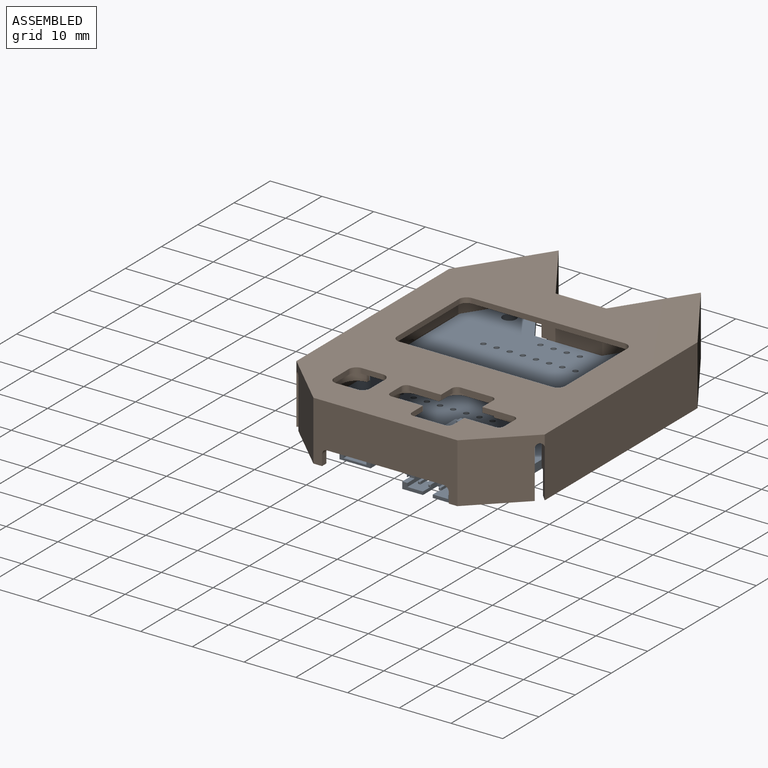
[diagram: assembled view]
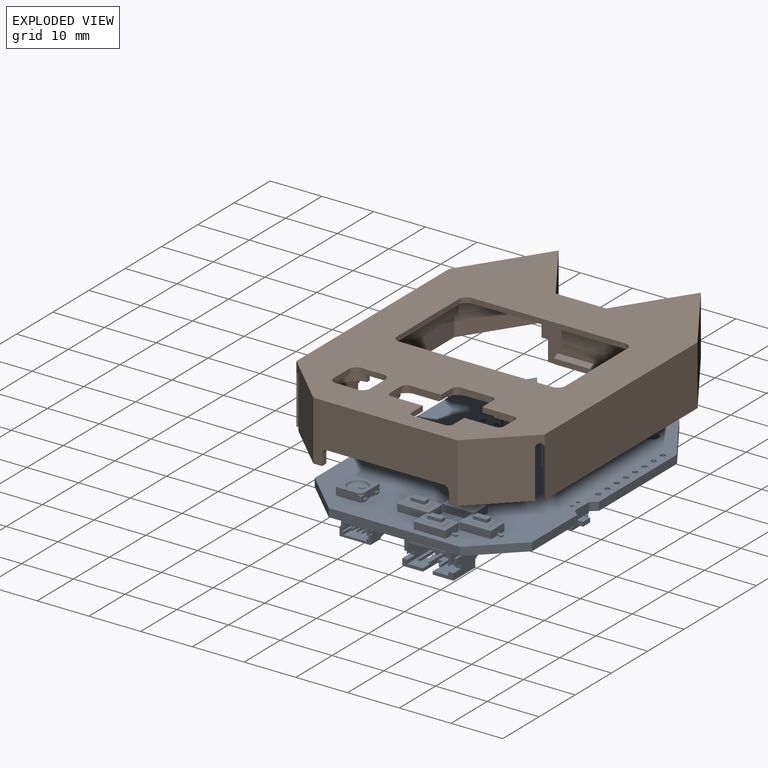
[diagram: exploded view]
GUIDED TOUR — FREECAD ASSEMBLY "v1.0_Case-Top_v3-Nugget"

This assembly has 2 components, labeled P0..P1 below (a component is one placed body or linked part; the same part can appear more than once), held together by 0 modeled joints plus 1 derived contact edge. A joint is a constraint between two components; its type names the relative motion it leaves free:
  CONTACT — a derived adjacency edge — the two components touch in the source model (clearance under 2% of the assembly's diagonal); it is measured from the geometry, not a modeled constraint.
Axis/direction vectors are unit vectors and 'through' points are millimeter coordinates, both in the assembly's world frame.

MATES
  1. CONTACT "contact_0_1": P0 <-> P1, contact direction (-1.000, 0.000, 0.000) through (21.40, 19.87, 4.75) mm (derived from contact, not a modeled constraint)

ASSEMBLY ORDER
  1. P1 — the base component [order verified]
  2. P0 [order verified]
Order-tag legend:
  [order verified] — this step's position reverses a verified removal order: the component was checked to insert without passing through the ones already placed.

Of the 2 components, 1 carries a construction recipe — the FreeCAD feature program (sketches with constraints, then the solid features that consume them) that regenerates the part from scratch, quoted from this document or from the linked companion document it references; the rest are supplied as boundary geometry only. The tour below walks the components in assembly order: each is shown spotlighted twice — in the assembled view, then in the exploded view, where a leader line traces a displaced component back to its assembled socket (components that stay in place when exploded have no leader line; saturated green if recipe-attached, orange if geometry-only; every other component desaturated gray) — followed by its recipe or geometry summary and the mates that hold it.
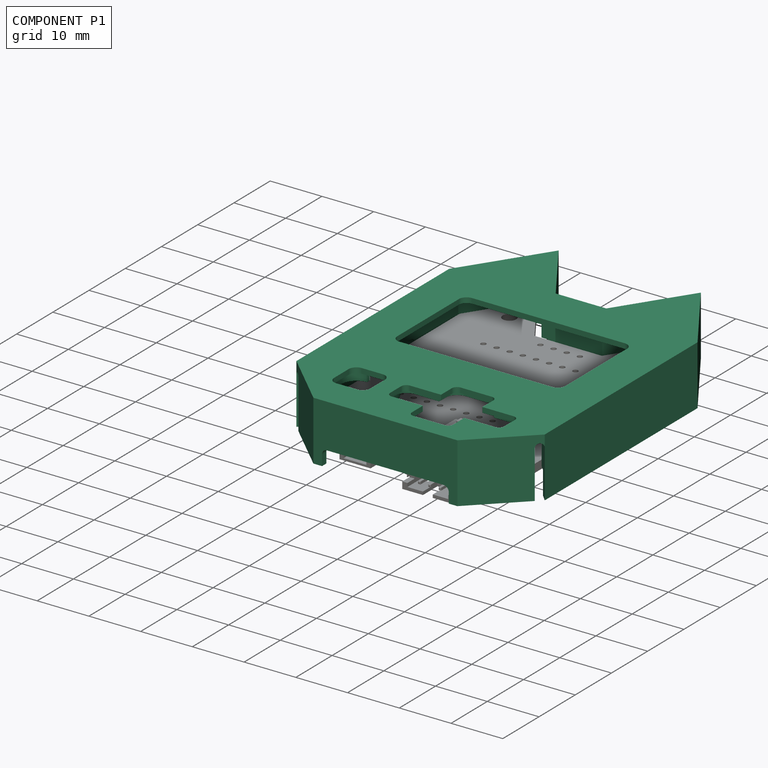
[diagram: component P1 — assembled]
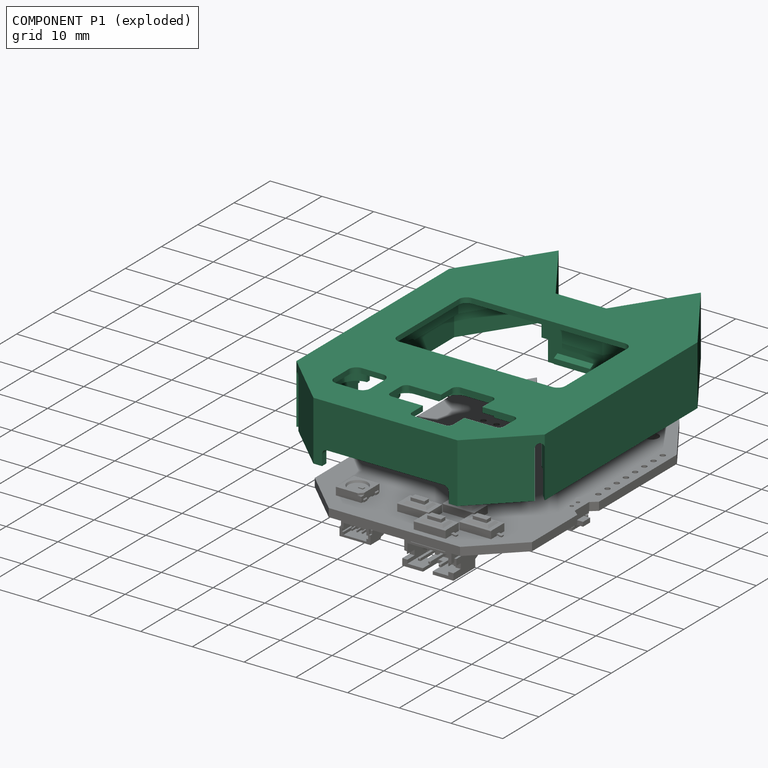
[diagram: component P1 — exploded]
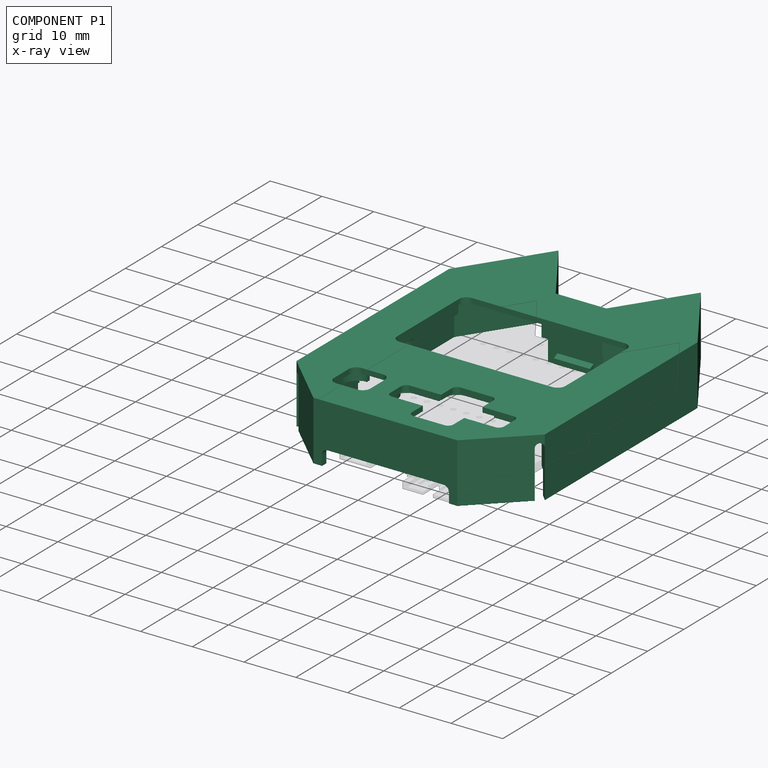
[diagram: component P1 — x-ray view]
COMPONENT P1 — recipe-attached ("Body", modeled in this document).
Held by: resting contact with P0 (derived edge).
Construction recipe (the document's own serialized feature program — sketch geometry with constraints, then the solid features built on it; lengths are millimeters unless a unit is written):

FEATURE [PartDesign::Pad] Pad
  AllowMultiFace = false
  Direction = (0,0,1)
  Length = 11.5
  Length2 = 100
  Profile = -> CopySketch
  Type = 0
FEATURE [PartDesign::Pocket] Pocket
  AllowMultiFace = false
  BaseFeature = -> Pad
  Direction = (0,0,-1)
  Length = 10.5
  Length2 = 100
  Profile = -> CopySketch002
  Reversed = true
  Type = 0
FEATURE [Sketcher::SketchObject] Sketch003
  ExternalGeometry = -> [Pocket]
  FullyConstrained = true
  MapMode = 5
  Placement = pos=(0,0,11.5) rot=(0,0,1;0rad)
  Support = -> [Pocket]
  sketch-geometry (57):
    g0: LineSegment StartX=3 StartY=-14.5 StartZ=0 EndX=9 EndY=-14.5 EndZ=0
    g1: LineSegment StartX=10 StartY=-15.5 StartZ=0 EndX=10 EndY=-18.5 EndZ=0
    g2: LineSegment StartX=9 StartY=-27.5 StartZ=0 EndX=3 EndY=-27.5 EndZ=0
    g3: LineSegment StartX=2 StartY=-26.5 StartZ=0 EndX=2 EndY=-23.5 EndZ=0
    g4: LineSegment StartX=16 StartY=-23.5 StartZ=0 EndX=10 EndY=-23.5 EndZ=0
    g5: LineSegment StartX=-5 StartY=-22.5 StartZ=0 EndX=-5 EndY=-19.5 EndZ=0
    g6: LineSegment StartX=-4 StartY=-18.5 StartZ=0 EndX=2 EndY=-18.5 EndZ=0
    g7: LineSegment StartX=17 StartY=-19.5 StartZ=0 EndX=17 EndY=-22.5 EndZ=0
    g8: LineSegment StartX=-14 StartY=-17.5 StartZ=0 EndX=-10 EndY=-17.5 EndZ=0
    g9: LineSegment StartX=-8.5 StartY=-19 StartZ=0 EndX=-8.5 EndY=-23 EndZ=0
    g10: LineSegment StartX=-10 StartY=-24.5 StartZ=0 EndX=-14 EndY=-24.5 EndZ=0
    g11: LineSegment StartX=-15.5 StartY=-23 StartZ=0 EndX=-15.5 EndY=-19 EndZ=0
    g12: LineSegment StartX=10 StartY=-18.5 StartZ=0 EndX=16 EndY=-18.5 EndZ=0
    g13: LineSegment StartX=2 StartY=-18.5 StartZ=0 EndX=2 EndY=-15.5 EndZ=0
    g14: LineSegment StartX=10 StartY=-23.5 StartZ=0 EndX=10 EndY=-26.5 EndZ=0
    g15: LineSegment StartX=2 StartY=-23.5 StartZ=0 EndX=-4 EndY=-23.5 EndZ=0
    g16: ArcOfCircle CenterX=-14 CenterY=-19 CenterZ=0 NormalX=0 NormalY=0 NormalZ=1 AngleXU=0 Radius=1.5 StartAngle=1.5708 EndAngle=3.14159
    g17: GeomPoint X=-15.5 Y=-17.5 Z=0
    g18: ArcOfCircle CenterX=-10 CenterY=-19 CenterZ=0 NormalX=0 NormalY=0 NormalZ=1 AngleXU=0 Radius=1.5 StartAngle=-9e-16 EndAngle=1.5708
    g19: GeomPoint X=-8.5 Y=-17.5 Z=0
    g20: ArcOfCircle CenterX=-10 CenterY=-23 CenterZ=0 NormalX=0 NormalY=0 NormalZ=1 AngleXU=0 Radius=1.5 StartAngle=4.71239 EndAngle=6.28319
    g21: GeomPoint X=-8.5 Y=-24.5 Z=0
    g22: ArcOfCircle CenterX=-14 CenterY=-23 CenterZ=0 NormalX=0 NormalY=0 NormalZ=1 AngleXU=0 Radius=1.5 StartAngle=3.14159 EndAngle=4.71239
    g23: GeomPoint X=-15.5 Y=-24.5 Z=0
    g24: ArcOfCircle CenterX=-4 CenterY=-19.5 CenterZ=0 NormalX=0 NormalY=0 NormalZ=1 AngleXU=0 Radius=1 StartAngle=1.5708 EndAngle=3.14159
    g25: GeomPoint X=-5 Y=-18.5 Z=0
    g26: ArcOfCircle CenterX=-4 CenterY=-22.5 CenterZ=0 NormalX=0 NormalY=0 NormalZ=1 AngleXU=0 Radius=1 StartAngle=3.14159 EndAngle=4.71239
    g27: GeomPoint X=-5 Y=-23.5 Z=0
    g28: ArcOfCircle CenterX=3 CenterY=-26.5 CenterZ=0 NormalX=0 NormalY=0 NormalZ=1 AngleXU=0 Radius=1 StartAngle=3.14159 EndAngle=4.71239
    g29: GeomPoint X=2 Y=-27.5 Z=0
    g30: ArcOfCircle CenterX=9 CenterY=-26.5 CenterZ=0 NormalX=0 NormalY=0 NormalZ=1 AngleXU=0 Radius=1 StartAngle=4.71239 EndAngle=6.28319
    g31: GeomPoint X=10 Y=-27.5 Z=0
    g32: ArcOfCircle CenterX=16 CenterY=-22.5 CenterZ=0 NormalX=0 NormalY=0 NormalZ=1 AngleXU=0 Radius=1 StartAngle=4.71239 EndAngle=6.28319
    g33: GeomPoint X=17 Y=-23.5 Z=0
    g34: ArcOfCircle CenterX=16 CenterY=-19.5 CenterZ=0 NormalX=0 NormalY=0 NormalZ=1 AngleXU=0 Radius=1 StartAngle=2e-16 EndAngle=1.5708
    g35: GeomPoint X=17 Y=-18.5 Z=0
    g36: ArcOfCircle CenterX=9 CenterY=-15.5 CenterZ=0 NormalX=0 NormalY=0 NormalZ=1 AngleXU=0 Radius=1 StartAngle=-9e-16 EndAngle=1.5708
    g37: GeomPoint X=10 Y=-14.5 Z=0
    g38: ArcOfCircle CenterX=3 CenterY=-15.5 CenterZ=0 NormalX=0 NormalY=0 NormalZ=1 AngleXU=0 Radius=1 StartAngle=1.5708 EndAngle=3.14159
    g39: GeomPoint X=2 Y=-14.5 Z=0
    g40: LineSegment StartX=6 StartY=-14.5 StartZ=0 EndX=6 EndY=-27.5 EndZ=0
    g41: LineSegment StartX=-5 StartY=-21 StartZ=0 EndX=17 EndY=-21 EndZ=0
    g42: GeomPoint X=-12 Y=-21 Z=0
    g43: GeomPoint X=6 Y=-21 Z=0
    g44: LineSegment StartX=-14.75 StartY=14 StartZ=0 EndX=14.75 EndY=14 EndZ=0
    g45: LineSegment StartX=16.25 StartY=12.5 StartZ=0 EndX=16.25 EndY=-4.5 EndZ=0
    g46: LineSegment StartX=14.75 StartY=-6 StartZ=0 EndX=-14.75 EndY=-6 EndZ=0
    g47: LineSegment StartX=-16.25 StartY=-4.5 StartZ=0 EndX=-16.25 EndY=12.5 EndZ=0
    g48: ArcOfCircle CenterX=-14.75 CenterY=12.5 CenterZ=0 NormalX=0 NormalY=0 NormalZ=1 AngleXU=0 Radius=1.5 StartAngle=1.5708 EndAngle=3.14159
    g49: GeomPoint X=-16.25 Y=14 Z=0
    g50: ArcOfCircle CenterX=-14.75 CenterY=-4.5 CenterZ=0 NormalX=0 NormalY=0 NormalZ=1 AngleXU=0 Radius=1.5 StartAngle=3.14159 EndAngle=4.71239
    g51: GeomPoint X=-16.25 Y=-6 Z=0
    g52: ArcOfCircle CenterX=14.75 CenterY=-4.5 CenterZ=0 NormalX=0 NormalY=0 NormalZ=1 AngleXU=0 Radius=1.5 StartAngle=4.71239 EndAngle=6.28319
    g53: GeomPoint X=16.25 Y=-6 Z=0
    g54: ArcOfCircle CenterX=14.75 CenterY=12.5 CenterZ=0 NormalX=0 NormalY=0 NormalZ=1 AngleXU=0 Radius=1.5 StartAngle=2e-16 EndAngle=1.5708
    g55: GeomPoint X=16.25 Y=14 Z=0
    g56: GeomPoint X=1e-16 Y=4 Z=0
  constraints (132):
    c: Horizontal(g0)
    c: Horizontal(g2)
    c: Vertical(g1)
    c: Vertical(g3)
    c: Horizontal(g4)
    c: Horizontal(g6)
    c: Vertical(g5)
    c: Vertical(g7)
    c: Horizontal(g8)
    c: Horizontal(g10)
    c: Vertical(g9)
    c: Vertical(g11)
    c: Coincident(g13,g6)
    c: Coincident(g1,g12)
    c: Coincident(g4,g14)
    c: Coincident(g15,g3)
    c: PointOnObject(g17,g8)
    c: PointOnObject(g17,g11)
    c: Tangent(g8,g16) = 1.5708
    c: Tangent(g11,g16) = 1.5708
    c: PointOnObject(g19,g8)
    c: PointOnObject(g19,g9)
    c: Tangent(g8,g18) = 1.5708
    c: Tangent(g9,g18) = 1.5708
    c: PointOnObject(g21,g9)
    c: PointOnObject(g21,g10)
    c: Tangent(g9,g20) = 1.5708
    c: Tangent(g10,g20) = 1.5708
    c: PointOnObject(g23,g11)
    c: PointOnObject(g23,g10)
    c: Tangent(g11,g22) = 1.5708
    c: Tangent(g10,g22) = 1.5708
    c: PointOnObject(g25,g6)
    c: PointOnObject(g25,g5)
    c: Tangent(g6,g24) = 1.5708
    c: Tangent(g5,g24) = 1.5708
    c: PointOnObject(g27,g5)
    c: PointOnObject(g27,g15)
    c: Tangent(g5,g26) = 1.5708
    c: Tangent(g15,g26) = 1.5708
    c: PointOnObject(g29,g3)
    c: PointOnObject(g29,g2)
    c: Tangent(g3,g28) = 1.5708
    c: Tangent(g2,g28) = 1.5708
    c: PointOnObject(g31,g2)
    c: PointOnObject(g31,g14)
    c: Tangent(g2,g30) = 1.5708
    c: Tangent(g14,g30) = 1.5708
    c: PointOnObject(g33,g4)
    c: PointOnObject(g33,g7)
    c: Tangent(g4,g32) = 1.5708
    c: Tangent(g7,g32) = 1.5708
    c: PointOnObject(g35,g12)
    c: PointOnObject(g35,g7)
    c: Tangent(g12,g34) = 1.5708
    c: Tangent(g7,g34) = 1.5708
    c: PointOnObject(g37,g0)
    c: PointOnObject(g37,g1)
    c: Tangent(g0,g36) = 1.5708
    c: Tangent(g1,g36) = 1.5708
    c: PointOnObject(g39,g13)
    c: PointOnObject(g39,g0)
    c: Tangent(g13,g38) = 1.5708
    c: Tangent(g0,g38) = 1.5708
    c: Equal(g36,g38)
    c: Equal(g38,g24)
    c: Equal(g24,g26)
    c: Equal(g26,g28)
    c: Equal(g28,g30)
    c: Equal(g30,g32)
    c: Equal(g32,g34)
    c: Symmetric(g0,g0,g40)
    c: Symmetric(g2,g2,g40)
    c: Vertical(g40)
    c: PointOnObject(g41,g5)
    c: Horizontal(g41)
    c: Symmetric(g7,g7,g41)
    c: Horizontal(g12)
    c: Horizontal(g15)
    c: Horizontal(g3,g4)
    c: Horizontal(g1,g6)
    c: Vertical(g13)
    c: Vertical(g6,g3)
    c: Vertical(g14)
    c: Equal(g12,g6)
    c: Equal(g13,g3)
    c: Radius(g32) = 1
    c: Equal(g16,g18)
    c: Equal(g18,g20)
    c: Equal(g20,g22)
    c: Equal(g10,g9)
    c: DistanceY(g10,g8) = 7
    c: Symmetric(g18,g22,g42)
    c: Horizontal(g42,g41)
    c: Radius(g18) = 1.5
    c: PointOnObject(g43,g40)
    c: PointOnObject(g43,g41)
    c: DistanceX(g-1,g43) = 6
    c: DistanceX(g42,g-1) = 12
    c: DistanceX(g3,g4) = 8
    c: DistanceX(g41,g41) = 22
    c: DistanceY(g4,g1) = 5
    c: DistanceY(g40,g40) = 13
    c: Horizontal(g44)
    c: Horizontal(g46)
    c: Vertical(g45)
    c: Vertical(g47)
    c: PointOnObject(g49,g47)
    c: PointOnObject(g49,g44)
    c: Tangent(g47,g48) = 1.5708
    c: Tangent(g44,g48) = 1.5708
    c: PointOnObject(g51,g47)
    c: PointOnObject(g51,g46)
    c: Tangent(g47,g50) = 1.5708
    c: Tangent(g46,g50) = 1.5708
    c: PointOnObject(g53,g46)
    c: PointOnObject(g53,g45)
    c: Tangent(g46,g52) = 1.5708
    c: Tangent(g45,g52) = 1.5708
    c: PointOnObject(g55,g44)
    c: PointOnObject(g55,g45)
    c: Tangent(g44,g54) = 1.5708
    c: Tangent(g45,g54) = 1.5708
    c: Equal(g54,g52)
    c: Equal(g52,g50)
    c: Radius(g48) = 1.5
    c: Symmetric(g48,g54,g-2)
    c: DistanceX(g47,g45) = 32.5
    c: DistanceY(g46,g44) = 20
    c: Symmetric(g50,g54,g56)
    c: DistanceY(g-1,g56) = 4
    c: DistanceY(g-3,g43) = 10
FEATURE [PartDesign::Pocket] Pocket001
  AllowMultiFace = false
  BaseFeature = -> Pocket
  Direction = (0,0,-1)
  Length = 5
  Length2 = 100
  Profile = -> Sketch003
  Type = 0
FEATURE [Sketcher::SketchObject] Sketch004
  FullyConstrained = false
  MapMode = 5
  Placement = pos=(-24,0,0) rot=(0.57735,-0.57735,-0.57735;2.0944rad)
  sketch-geometry (6):
    g0: LineSegment StartX=-8.53983 StartY=0 StartZ=0 EndX=5.96017 EndY=0 EndZ=0
    g1: LineSegment StartX=5.96017 StartY=0 StartZ=0 EndX=5.96017 EndY=3.5 EndZ=0
    g2: LineSegment StartX=4.46017 StartY=5 StartZ=0 EndX=-7.03983 EndY=5 EndZ=0
    g3: LineSegment StartX=-8.53983 StartY=3.5 StartZ=0 EndX=-8.53983 EndY=0 EndZ=0
    g4: ArcOfCircle CenterX=4.46017 CenterY=3.5 CenterZ=0 NormalX=0 NormalY=0 NormalZ=1 AngleXU=0 Radius=1.5 StartAngle=1e-16 EndAngle=1.5708
    g5: ArcOfCircle CenterX=-7.03983 CenterY=3.5 CenterZ=0 NormalX=0 NormalY=0 NormalZ=1 AngleXU=0 Radius=1.5 StartAngle=1.5708 EndAngle=3.14159
  constraints (15):
    c: Coincident(g0,g1)
    c: Coincident(g3,g0)
    c: Horizontal(g0)
    c: Horizontal(g2)
    c: Vertical(g1)
    c: Vertical(g3)
    c: PointOnObject(g0,g-1)
    c: Tangent(g2,g4) = -1.5708
    c: Tangent(g1,g4) = -1.5708
    c: Tangent(g3,g5) = -1.5708
    c: Tangent(g2,g5) = -1.5708
    c: Equal(g5,g4)
    c: Radius(g4) = 1.5
    c: DistanceX(g0,g0) = 14.5
    c: DistanceY(g0,g2) = 5
FEATURE [Sketcher::SketchObject] Sketch
  ExternalGeometry = -> [Pocket001]
  FullyConstrained = true
  MapMode = 5
  Placement = pos=(0,0,10.5) rot=(1,0,0;3.14159rad)
  Support = -> [Pocket001]
  sketch-geometry (35):
    g0: LineSegment StartX=-22.8 StartY=-20.5398 StartZ=0 EndX=-13.75 EndY=-34.2709 EndZ=0
    g1: LineSegment StartX=-13.75 StartY=-34.2709 StartZ=0 EndX=-5.33284 EndY=-21.5 EndZ=0
    g2: LineSegment StartX=-5.33284 StartY=-21.5 StartZ=0 EndX=5.33284 EndY=-21.5 EndZ=0
    g3: LineSegment StartX=5.33284 StartY=-21.5 StartZ=0 EndX=13.75 EndY=-34.2709 EndZ=0
    g4: LineSegment StartX=13.75 StartY=-34.2709 StartZ=0 EndX=22.8 EndY=-20.5398 EndZ=0
    g5: LineSegment StartX=22.8 StartY=-20.5398 StartZ=0 EndX=22.8 EndY=20.7651 EndZ=0
    g6: LineSegment StartX=22.8 StartY=20.7651 StartZ=0 EndX=13.4263 EndY=29.8 EndZ=0
    g7: LineSegment StartX=13.4263 StartY=29.8 StartZ=0 EndX=-13.4263 EndY=29.8 EndZ=0
    g8: LineSegment StartX=-13.4263 StartY=29.8 StartZ=0 EndX=-22.8 EndY=20.7651 EndZ=0
    g9: LineSegment StartX=-22.8 StartY=20.7651 StartZ=0 EndX=-22.8 EndY=-20.5398 EndZ=0
    g10: LineSegment StartX=-21.8 StartY=20.34 StartZ=0 EndX=-13.0228 EndY=28.8 EndZ=0
    g11: LineSegment StartX=-13.0228 StartY=28.8 StartZ=0 EndX=13.0228 EndY=28.8 EndZ=0
    g12: LineSegment StartX=13.0228 StartY=28.8 StartZ=0 EndX=21.8 EndY=20.34 EndZ=0
    g13: LineSegment StartX=21.8 StartY=20.34 StartZ=0 EndX=21.8 EndY=15.84 EndZ=0
    g14: LineSegment StartX=21.8 StartY=15.84 StartZ=0 EndX=19.8 EndY=14.84 EndZ=0
    g15: LineSegment StartX=19.8 StartY=14.84 StartZ=0 EndX=19.8 EndY=9.84003 EndZ=0
    g16: LineSegment StartX=19.8 StartY=9.84003 StartZ=0 EndX=21.8 EndY=8.84003 EndZ=0
    g17: LineSegment StartX=21.8 StartY=8.84003 StartZ=0 EndX=21.8 EndY=-20.2399 EndZ=0
    g18: LineSegment StartX=21.8 StartY=-20.2399 StartZ=0 EndX=13.75 EndY=-32.4537 EndZ=0
    g19: LineSegment StartX=13.75 StartY=-32.4537 StartZ=0 EndX=5.87141 EndY=-20.5 EndZ=0
    g20: LineSegment StartX=5.87141 StartY=-20.5 StartZ=0 EndX=-5.87141 EndY=-20.5 EndZ=0
    g21: LineSegment StartX=-5.87141 StartY=-20.5 StartZ=0 EndX=-13.75 EndY=-32.4537 EndZ=0
    g22: LineSegment StartX=-13.75 StartY=-32.4537 StartZ=0 EndX=-21.8 EndY=-20.2399 EndZ=0
    g23: LineSegment StartX=-21.8 StartY=-20.2399 StartZ=0 EndX=-21.8 EndY=8.84003 EndZ=0
    g24: LineSegment StartX=-21.8 StartY=8.84003 StartZ=0 EndX=-19.8 EndY=9.84003 EndZ=0
    g25: LineSegment StartX=-19.8 StartY=9.84003 StartZ=0 EndX=-19.8 EndY=14.84 EndZ=0
    g26: LineSegment StartX=-19.8 StartY=14.84 StartZ=0 EndX=-21.8 EndY=15.84 EndZ=0
    g27: LineSegment StartX=-21.8 StartY=15.84 StartZ=0 EndX=-21.8 EndY=20.34 EndZ=0
    g28: LineSegment StartX=-21.8 StartY=15.84 StartZ=0 EndX=-21.8 EndY=8.84003 EndZ=0
    g29: LineSegment StartX=21.8 StartY=15.84 StartZ=0 EndX=21.8 EndY=8.84003 EndZ=0
    g30: LineSegment StartX=-21.8 StartY=12.34 StartZ=0 EndX=-19.8 EndY=12.34 EndZ=0
    g31: LineSegment StartX=19.8 StartY=12.34 StartZ=0 EndX=21.8 EndY=12.34 EndZ=0
    g32: LineSegment StartX=13.75 StartY=-32.4537 StartZ=0 EndX=12.915 EndY=-33.004 EndZ=0
    g33: LineSegment StartX=14.585 StartY=-33.004 StartZ=0 EndX=13.75 EndY=-32.4537 EndZ=0
    g34: LineSegment StartX=22.106 StartY=20.0451 StartZ=0 EndX=22.8 EndY=20.7651 EndZ=0
  constraints (85):
    c: Coincident(g0,g1)
    c: Coincident(g1,g2)
    c: Coincident(g2,g3)
    c: Coincident(g3,g4)
    c: Coincident(g4,g5)
    c: Coincident(g5,g6)
    c: Coincident(g6,g7)
    c: Coincident(g7,g8)
    c: Coincident(g8,g9)
    c: Coincident(g9,g0)
    c: Symmetric(g7,g6,g-2)
    c: Symmetric(g8,g5,g-2)
    c: Symmetric(g2,g1,g-2)
    c: Symmetric(g0,g4,g-2)
    c: Symmetric(g0,g3,g-2)
    c: Coincident(g-3,g3)
    c: Coincident(g2,g-3)
    c: Coincident(g-4,g4)
    c: Coincident(g-5,g7)
    c: Coincident(g5,g-4)
    c: Coincident(g10,g11)
    c: Coincident(g11,g12)
    c: Coincident(g12,g13)
    c: Vertical(g13)
    c: Coincident(g13,g14)
    c: Coincident(g14,g15)
    c: Coincident(g15,g16)
    c: Coincident(g16,g17)
    c: Vertical(g17)
    c: Coincident(g17,g18)
    c: Coincident(g18,g19)
    c: Coincident(g19,g20)
    c: Coincident(g20,g21)
    c: Coincident(g21,g22)
    c: Coincident(g22,g23)
    c: Coincident(g23,g24)
    c: Coincident(g24,g25)
    c: Coincident(g25,g26)
    c: Coincident(g26,g27)
    c: Coincident(g27,g10)
    c: Symmetric(g10,g11,g-2)
    c: Symmetric(g10,g12,g-2)
    c: Coincident(g28,g26)
    c: Coincident(g28,g23)
    c: Coincident(g29,g13)
    c: Coincident(g29,g16)
    c: Vertical(g29)
    c: Vertical(g28)
    c: Equal(g28,g29)
    c: Symmetric(g26,g13,g-2)
    c: Horizontal(g30)
    c: Horizontal(g31)
    c: Equal(g30,g31)
    c: Symmetric(g26,g23,g30)
    c: Symmetric(g25,g24,g30)
    c: Vertical(g25)
    c: Symmetric(g15,g14,g31)
    c: Vertical(g15)
    c: Symmetric(g16,g13,g31)
    c: Equal(g15,g25)
    c: DistanceY(g27,g27) = 4.5
    c: Symmetric(g17,g22,g-2)
    c: Symmetric(g19,g20,g-2)
    c: Coincident(g32,g18)
    c: PointOnObject(g32,g3)
    c: PointOnObject(g33,g4)
    c: Coincident(g33,g18)
    c: Perpendicular(g18,g33)
    c: Perpendicular(g19,g32)
    c: Equal(g32,g33)
    c: Parallel(g4,g18)
    c: Symmetric(g18,g21,g-2)
    c: Parallel(g3,g19)
    c: DistanceY(g2,g19) = 1
    c: DistanceY(g11,g6) = 1
    c: Parallel(g6,g12)
    c: DistanceX(g12,g5) = 1
    c: Coincident(g34,g5)
    c: PointOnObject(g34,g12)
    c: Perpendicular(g12,g34)
    c: Distance(g34) = 1
    c: DistanceY(g28,g28) = 7
    c: DistanceX(g30,g30) = 2
    c: DistanceY(g25,g25) = 5
    c: Distance(g33) = 1
FEATURE [PartDesign::Pad] Pad001
  BaseFeature = -> Pocket001
  Direction = (0,0,-1)
  Length = 6
  Length2 = 10
  Profile = -> Sketch
  ReferenceAxis = -> Sketch [N_Axis]
  Type = 0
FEATURE [Sketcher::SketchObject] Sketch007
  ExternalGeometry = -> [Pad001]
  FullyConstrained = true
  MapMode = 5
  Placement = pos=(0,-31,0) rot=(1,0,0;1.5708rad)
  Support = -> [Pad001]
  sketch-geometry (8):
    g0: LineSegment StartX=12.9104 StartY=3 StartZ=0 EndX=-12.9104 EndY=3 EndZ=0
    g1: LineSegment StartX=-13.9104 StartY=2 StartZ=0 EndX=-13.9104 EndY=0 EndZ=0
    g2: LineSegment StartX=-13.9104 StartY=0 StartZ=0 EndX=13.9104 EndY=0 EndZ=0
    g3: LineSegment StartX=13.9104 StartY=0 StartZ=0 EndX=13.9104 EndY=2 EndZ=0
    g4: ArcOfCircle CenterX=-12.9104 CenterY=2 CenterZ=0 NormalX=0 NormalY=0 NormalZ=1 AngleXU=0 Radius=1 StartAngle=1.5708 EndAngle=3.14159
    g5: GeomPoint X=-13.9104 Y=3 Z=0
    g6: ArcOfCircle CenterX=12.9104 CenterY=2 CenterZ=0 NormalX=0 NormalY=0 NormalZ=1 AngleXU=0 Radius=1 StartAngle=0 EndAngle=1.5708
    g7: GeomPoint X=13.9104 Y=3 Z=0
  constraints (18):
    c: Coincident(g1,g2)
    c: Coincident(g2,g3)
    c: Horizontal(g2)
    c: Vertical(g1)
    c: Vertical(g3)
    c: Symmetric(g5,g7,g-2)
    c: DistanceY(g1,g5) = 3
    c: PointOnObject(g5,g1)
    c: PointOnObject(g5,g0)
    c: Tangent(g1,g4) = -1.5708
    c: Tangent(g0,g4) = -1.5708
    c: PointOnObject(g7,g0)
    c: PointOnObject(g7,g3)
    c: Tangent(g0,g6) = -1.5708
    c: Tangent(g3,g6) = -1.5708
    c: Equal(g6,g4)
    c: Radius(g4) = 1
    c: Coincident(g1,g-3)
FEATURE [PartDesign::Pocket] Pocket004
  Direction = (0,1,-2e-16)
  Length = 5
  Length2 = 5
  Profile = -> Sketch007
  ReferenceAxis = -> Sketch007 [N_Axis]
  Type = 0
FEATURE [PartDesign::Plane] DatumPlane
  Length = 91.4266
  MapMode = 45
  Placement = pos=(18.275,27.4053,0) rot=(-0.207452,0.691724,0.691724;3.55069rad)
  ResizeMode = 0
  Support = -> [Pocket004]
  Width = 62.5592
FEATURE [Sketcher::SketchObject] Sketch008
  FullyConstrained = true
  MapMode = 5
  Placement = pos=(18.275,27.4053,0) rot=(-0.207452,0.691724,0.691724;3.55069rad)
  Support = -> [DatumPlane]
  sketch-geometry (5):
    g0: LineSegment StartX=0 StartY=2 StartZ=0 EndX=0 EndY=0 EndZ=0
    g1: LineSegment StartX=0 StartY=0 StartZ=0 EndX=-1 EndY=0.5 EndZ=0
    g2: LineSegment StartX=-1 StartY=0.5 StartZ=0 EndX=-1 EndY=1.5 EndZ=0
    g3: LineSegment StartX=-1 StartY=1.5 StartZ=0 EndX=0 EndY=2 EndZ=0
    g4: LineSegment StartX=-1 StartY=1 StartZ=0 EndX=0 EndY=1 EndZ=0
  constraints (13):
    c: Vertical(g0)
    c: Coincident(g0,g1)
    c: Coincident(g1,g2)
    c: Vertical(g2)
    c: Coincident(g2,g3)
    c: Coincident(g3,g0)
    c: Horizontal(g4)
    c: DistanceY(g0,g0) = 2
    c: DistanceY(g2,g2) = 1
    c: DistanceX(g4,g4) = 1
    c: Symmetric(g2,g1,g4)
    c: Symmetric(g0,g0,g4)
    c: Coincident(g0,g-1)
FEATURE [PartDesign::Pad] Pad002
  BaseFeature = -> Pocket004
  Direction = (-0.550313,0.834958,-2e-16)
  Length = 7
  Length2 = 10
  Midplane = true
  Profile = -> Sketch008
  ReferenceAxis = -> Sketch008 [N_Axis]
  Type = 0
FEATURE [PartDesign::Plane] DatumPlane001
  Length = 91.4266
  MapMode = 45
  Placement = pos=(-18.275,27.4053,0) rot=(0.207452,0.691724,0.691724;2.73249rad)
  ResizeMode = 0
  Support = -> [Pad002]
  Width = 62.5592
FEATURE [Sketcher::SketchObject] Sketch009
  FullyConstrained = true
  MapMode = 5
  Placement = pos=(-18.275,27.4053,0) rot=(0.207452,0.691724,0.691724;2.73249rad)
  Support = -> [DatumPlane001]
  sketch-geometry (5):
    g0: LineSegment StartX=-1e-16 StartY=2 StartZ=0 EndX=-1e-16 EndY=0 EndZ=0
    g1: LineSegment StartX=-1e-16 StartY=0 StartZ=0 EndX=1 EndY=0.5 EndZ=0
    g2: LineSegment StartX=1 StartY=0.5 StartZ=0 EndX=1 EndY=1.5 EndZ=0
    g3: LineSegment StartX=1 StartY=1.5 StartZ=0 EndX=-1e-16 EndY=2 EndZ=0
    g4: LineSegment StartX=0 StartY=1 StartZ=0 EndX=1 EndY=1 EndZ=0
  constraints (13):
    c: Vertical(g0)
    c: Coincident(g0,g1)
    c: Coincident(g1,g2)
    c: Coincident(g2,g3)
    c: Coincident(g3,g0)
    c: Horizontal(g4)
    c: Symmetric(g1,g2,g4)
    c: Symmetric(g0,g0,g4)
    c: DistanceX(g4,g4) = 1
    c: DistanceY(g2,g2) = 1
    c: DistanceY(g0,g0) = 2
    c: Vertical(g2)
    c: Coincident(g0,g-1)
FEATURE [PartDesign::Pad] Pad003
  BaseFeature = -> Pad002
  Direction = (0.550313,0.834958,0)
  Length = 7
  Length2 = 10
  Midplane = true
  Profile = -> Sketch009
  ReferenceAxis = -> Sketch009 [N_Axis]
  Type = 0
FEATURE [PartDesign::Mirrored] Mirrored001
  BaseFeature = -> Pad003
  MirrorPlane = -> YZ_Plane
  Originals = -> [Pad003]
FEATURE [Sketcher::SketchObject] Sketch011
  ExternalGeometry = -> [Mirrored001]
  FullyConstrained = false
  MapMode = 5
  Placement = pos=(0,0,10.5) rot=(1,0,0;3.14159rad)
  Support = -> [Mirrored001]
  sketch-geometry (12):
    g0: LineSegment StartX=-1 StartY=29.8 StartZ=0 EndX=-1 EndY=28.8 EndZ=0
    g1: LineSegment StartX=-1 StartY=28.8 StartZ=0 EndX=13.0228 EndY=28.8 EndZ=0
    g2: LineSegment StartX=13.0228 StartY=28.8 StartZ=0 EndX=21.8 EndY=20.34 EndZ=0
    g3: LineSegment StartX=21.8 StartY=20.34 StartZ=0 EndX=22.8 EndY=20.7651 EndZ=0
    g4: LineSegment StartX=22.8 StartY=20.7651 StartZ=0 EndX=13.4263 EndY=29.8 EndZ=0
    g5: LineSegment StartX=13.4263 StartY=29.8 StartZ=0 EndX=-1 EndY=29.8 EndZ=0
    g6: LineSegment StartX=-13.0228 StartY=28.8 StartZ=0 EndX=-21.8 EndY=20.34 EndZ=0
    g7: LineSegment StartX=-21.8 StartY=20.34 StartZ=0 EndX=-22.8 EndY=20.7651 EndZ=0
    g8: LineSegment StartX=-22.8 StartY=20.7651 StartZ=0 EndX=-13.4263 EndY=29.8 EndZ=0
    g9: LineSegment StartX=-13.0228 StartY=28.8 StartZ=0 EndX=-11.0228 EndY=28.8 EndZ=0
    g10: LineSegment StartX=-11.0228 StartY=28.8 StartZ=0 EndX=-11.0228 EndY=29.8 EndZ=0
    g11: LineSegment StartX=-11.0228 StartY=29.8 StartZ=0 EndX=-13.4263 EndY=29.8 EndZ=0
  constraints (17):
    c: Coincident(g0,g1)
    c: Horizontal(g1)
    c: Coincident(g1,g2)
    c: Coincident(g2,g3)
    c: Coincident(g3,g4)
    c: Coincident(g4,g5)
    c: Coincident(g5,g0)
    c: Vertical(g0)
    c: Coincident(g6,g7)
    c: Coincident(g7,g8)
    c: Horizontal(g9)
    c: Coincident(g9,g10)
    c: Coincident(g10,g11)
    c: Coincident(g6,g9)
    c: Coincident(g8,g11)
    c: Vertical(g10)
    c: DistanceX(g9,g9) = 2
FEATURE [PartDesign::Pocket] Pocket005
  BaseFeature = -> Mirrored001
  Direction = (0,0,1)
  Length = 6
  Length2 = 5
  Profile = -> Sketch011
  ReferenceAxis = -> Sketch011 [N_Axis]
  Type = 0
FEATURE [Sketcher::SketchObject] Sketch010
  ExternalGeometry = -> [Pocket005]
  FullyConstrained = true
  MapMode = 5
  Placement = pos=(0,0,10.5) rot=(1,0,0;3.14159rad)
  Support = -> [Pocket005]
  sketch-geometry (59):
    g0: LineSegment StartX=3 StartY=29.6 StartZ=0 EndX=9 EndY=29.6 EndZ=0
    g1: LineSegment StartX=12.1 StartY=26.5 StartZ=0 EndX=12.1 EndY=25.6 EndZ=0
    g2: LineSegment StartX=9 StartY=12.4 StartZ=0 EndX=3 EndY=12.4 EndZ=0
    g3: LineSegment StartX=-0.1 StartY=15.5 StartZ=0 EndX=-0.1 EndY=16.4 EndZ=0
    g4: LineSegment StartX=-4 StartY=25.6 StartZ=0 EndX=-0.1 EndY=25.6 EndZ=0
    g5: LineSegment StartX=19.1 StartY=22.5 StartZ=0 EndX=19.1 EndY=19.5 EndZ=0
    g6: LineSegment StartX=16 StartY=16.4 StartZ=0 EndX=12.1 EndY=16.4 EndZ=0
    g7: LineSegment StartX=-7.1 StartY=19.5 StartZ=0 EndX=-7.1 EndY=22.5 EndZ=0
    g8: LineSegment StartX=12.1 StartY=16.4 StartZ=0 EndX=12.1 EndY=15.5 EndZ=0
    g9: LineSegment StartX=12.1 StartY=25.6 StartZ=0 EndX=16 EndY=25.6 EndZ=0
    g10: LineSegment StartX=-0.1 StartY=25.6 StartZ=0 EndX=-0.1 EndY=26.5 EndZ=0
    g11: LineSegment StartX=-0.1 StartY=16.4 StartZ=0 EndX=-4 EndY=16.4 EndZ=0
    g12: ArcOfCircle CenterX=3 CenterY=26.5 CenterZ=0 NormalX=0 NormalY=0 NormalZ=1 AngleXU=0 Radius=3.1 StartAngle=1.5708 EndAngle=3.14159
    g13: GeomPoint X=-0.1 Y=29.6 Z=0
    g14: ArcOfCircle CenterX=9 CenterY=26.5 CenterZ=0 NormalX=0 NormalY=0 NormalZ=1 AngleXU=0 Radius=3.1 StartAngle=0 EndAngle=1.5708
    g15: GeomPoint X=12.1 Y=29.6 Z=0
    g16: ArcOfCircle CenterX=16 CenterY=22.5 CenterZ=0 NormalX=0 NormalY=0 NormalZ=1 AngleXU=0 Radius=3.1 StartAngle=7e-16 EndAngle=1.5708
    g17: GeomPoint X=19.1 Y=25.6 Z=0
    g18: ArcOfCircle CenterX=16 CenterY=19.5 CenterZ=0 NormalX=0 NormalY=0 NormalZ=1 AngleXU=0 Radius=3.1 StartAngle=4.71239 EndAngle=6.28319
    g19: GeomPoint X=19.1 Y=16.4 Z=0
    g20: ArcOfCircle CenterX=9 CenterY=15.5 CenterZ=0 NormalX=0 NormalY=0 NormalZ=1 AngleXU=0 Radius=3.1 StartAngle=4.71239 EndAngle=6.28319
    g21: GeomPoint X=12.1 Y=12.4 Z=0
    g22: ArcOfCircle CenterX=-4 CenterY=22.5 CenterZ=0 NormalX=0 NormalY=0 NormalZ=1 AngleXU=0 Radius=3.1 StartAngle=1.5708 EndAngle=3.14159
    g23: GeomPoint X=-7.1 Y=25.6 Z=0
    g24: ArcOfCircle CenterX=-4 CenterY=19.5 CenterZ=0 NormalX=0 NormalY=0 NormalZ=1 AngleXU=0 Radius=3.1 StartAngle=3.14159 EndAngle=4.71239
    g25: GeomPoint X=-7.1 Y=16.4 Z=0
    g26: ArcOfCircle CenterX=3 CenterY=15.5 CenterZ=0 NormalX=0 NormalY=0 NormalZ=1 AngleXU=0 Radius=3.1 StartAngle=3.14159 EndAngle=4.71239
    g27: GeomPoint X=-0.1 Y=12.4 Z=0
    g28: LineSegment StartX=6 StartY=29.6 StartZ=0 EndX=6 EndY=12.4 EndZ=0
    g29: LineSegment StartX=-7.1 StartY=21 StartZ=0 EndX=19.1 EndY=21 EndZ=0
    g30: GeomPoint X=6 Y=21 Z=0
    g31: LineSegment StartX=0.7 StartY=26.5 StartZ=0 EndX=0.7 EndY=24.8 EndZ=0
    g32: LineSegment StartX=0.7 StartY=24.8 StartZ=0 EndX=-4 EndY=24.8 EndZ=0
    g33: LineSegment StartX=-6.3 StartY=22.5 StartZ=0 EndX=-6.3 EndY=19.5 EndZ=0
    g34: LineSegment StartX=-4 StartY=17.2 StartZ=0 EndX=0.7 EndY=17.2 EndZ=0
    g35: LineSegment StartX=0.7 StartY=17.2 StartZ=0 EndX=0.7 EndY=15.5 EndZ=0
    g36: LineSegment StartX=3 StartY=13.2 StartZ=0 EndX=9 EndY=13.2 EndZ=0
    g37: LineSegment StartX=11.3 StartY=15.5 StartZ=0 EndX=11.3 EndY=17.2 EndZ=0
    g38: LineSegment StartX=11.3 StartY=17.2 StartZ=0 EndX=16 EndY=17.2 EndZ=0
    g39: LineSegment StartX=18.3 StartY=19.5 StartZ=0 EndX=18.3 EndY=22.5 EndZ=0
    g40: LineSegment StartX=16 StartY=24.8 StartZ=0 EndX=11.3 EndY=24.8 EndZ=0
    g41: LineSegment StartX=11.3 StartY=24.8 StartZ=0 EndX=11.3 EndY=26.5 EndZ=0
    g42: LineSegment StartX=9 StartY=28.8 StartZ=0 EndX=3 EndY=28.8 EndZ=0
    g43: ArcOfCircle CenterX=3 CenterY=26.5 CenterZ=0 NormalX=0 NormalY=0 NormalZ=1 AngleXU=0 Radius=2.3 StartAngle=1.5708 EndAngle=3.14159
    g44: GeomPoint X=0.7 Y=28.8 Z=0
    g45: ArcOfCircle CenterX=9 CenterY=26.5 CenterZ=0 NormalX=0 NormalY=0 NormalZ=1 AngleXU=0 Radius=2.3 StartAngle=-4.71e-14 EndAngle=1.5708
    g46: GeomPoint X=11.3 Y=28.8 Z=0
    g47: ArcOfCircle CenterX=-4 CenterY=22.5 CenterZ=0 NormalX=0 NormalY=0 NormalZ=1 AngleXU=0 Radius=2.3 StartAngle=1.5708 EndAngle=3.14159
    g48: GeomPoint X=-6.3 Y=24.8 Z=0
    g49: ArcOfCircle CenterX=-4 CenterY=19.5 CenterZ=0 NormalX=0 NormalY=0 NormalZ=1 AngleXU=0 Radius=2.3 StartAngle=3.14159 EndAngle=4.71239
    g50: GeomPoint X=-6.3 Y=17.2 Z=0
    g51: ArcOfCircle CenterX=3 CenterY=15.5 CenterZ=0 NormalX=0 NormalY=0 NormalZ=1 AngleXU=0 Radius=2.3 StartAngle=3.14159 EndAngle=4.71239
    g52: GeomPoint X=0.7 Y=13.2 Z=0
    g53: ArcOfCircle CenterX=9 CenterY=15.5 CenterZ=0 NormalX=0 NormalY=0 NormalZ=1 AngleXU=0 Radius=2.3 StartAngle=4.71239 EndAngle=6.28319
    g54: GeomPoint X=11.3 Y=13.2 Z=0
    g55: ArcOfCircle CenterX=16 CenterY=19.5 CenterZ=0 NormalX=0 NormalY=0 NormalZ=1 AngleXU=0 Radius=2.3 StartAngle=4.71239 EndAngle=6.28319
    g56: GeomPoint X=18.3 Y=17.2 Z=0
    g57: ArcOfCircle CenterX=16 CenterY=22.5 CenterZ=0 NormalX=0 NormalY=0 NormalZ=1 AngleXU=0 Radius=2.3 StartAngle=-7.19e-14 EndAngle=1.5708
    g58: GeomPoint X=18.3 Y=24.8 Z=0
  constraints (130):
    c: Horizontal(g0)
    c: Horizontal(g2)
    c: Vertical(g1)
    c: Vertical(g3)
    c: Horizontal(g4)
    c: Horizontal(g6)
    c: Vertical(g5)
    c: Vertical(g7)
    c: Coincident(g9,g1)
    c: Coincident(g10,g4)
    c: Coincident(g6,g8)
    c: Coincident(g11,g3)
    c: PointOnObject(g13,g10)
    c: PointOnObject(g13,g0)
    c: Tangent(g10,g12) = 1.5708
    c: Tangent(g0,g12) = 1.5708
    c: PointOnObject(g15,g0)
    c: PointOnObject(g15,g1)
    c: Tangent(g0,g14) = 1.5708
    c: Tangent(g1,g14) = 1.5708
    c: PointOnObject(g17,g9)
    c: PointOnObject(g17,g5)
    c: Tangent(g9,g16) = 1.5708
    c: Tangent(g5,g16) = 1.5708
    c: PointOnObject(g19,g5)
    c: PointOnObject(g19,g6)
    c: Tangent(g5,g18) = 1.5708
    c: Tangent(g6,g18) = 1.5708
    c: PointOnObject(g21,g8)
    c: PointOnObject(g21,g2)
    c: Tangent(g8,g20) = 1.5708
    c: Tangent(g2,g20) = 1.5708
    c: PointOnObject(g23,g7)
    c: PointOnObject(g23,g4)
    c: Tangent(g7,g22) = 1.5708
    c: Tangent(g4,g22) = 1.5708
    c: PointOnObject(g25,g7)
    c: PointOnObject(g25,g11)
    c: Tangent(g7,g24) = 1.5708
    c: Tangent(g11,g24) = 1.5708
    c: PointOnObject(g27,g3)
    c: PointOnObject(g27,g2)
    c: Tangent(g3,g26) = 1.5708
    c: Tangent(g2,g26) = 1.5708
    c: PointOnObject(g29,g5)
    c: Symmetric(g0,g0,g28)
    c: Symmetric(g7,g7,g29)
    c: Symmetric(g5,g5,g29)
    c: Symmetric(g2,g2,g28)
    c: PointOnObject(g30,g28)
    c: PointOnObject(g30,g29)
    c: Symmetric(g29,g29,g28)
    c: Vertical(g10)
    c: Equal(g14,g12)
    c: Equal(g12,g22)
    c: Equal(g22,g24)
    c: Equal(g24,g18)
    c: Equal(g18,g16)
    c: Equal(g26,g20)
    c: Vertical(g8)
    c: Horizontal(g9)
    c: Symmetric(g3,g4,g29)
    c: Horizontal(g4,g1)
    c: Symmetric(g0,g2,g29)
    c: Coincident(g31,g32)
    c: Horizontal(g32)
    c: Horizontal(g34)
    c: Coincident(g34,g35)
    c: Coincident(g37,g38)
    c: Coincident(g40,g41)
    c: PointOnObject(g44,g31)
    c: PointOnObject(g44,g42)
    c: Tangent(g31,g43) = -1.5708
    c: Tangent(g42,g43) = -1.5708
    c: PointOnObject(g46,g42)
    c: PointOnObject(g46,g41)
    c: Tangent(g42,g45) = -1.5708
    c: Tangent(g41,g45) = -1.5708
    c: PointOnObject(g48,g32)
    c: PointOnObject(g48,g33)
    c: Tangent(g32,g47) = -1.5708
    c: Tangent(g33,g47) = -1.5708
    c: PointOnObject(g50,g33)
    c: PointOnObject(g50,g34)
    c: Tangent(g33,g49) = -1.5708
    c: Tangent(g34,g49) = -1.5708
    c: PointOnObject(g52,g35)
    c: PointOnObject(g52,g36)
    c: Tangent(g35,g51) = -1.5708
    c: Tangent(g36,g51) = -1.5708
    c: PointOnObject(g54,g36)
    c: PointOnObject(g54,g37)
    c: Tangent(g36,g53) = -1.5708
    c: Tangent(g37,g53) = -1.5708
    c: PointOnObject(g56,g38)
    c: PointOnObject(g56,g39)
    c: Tangent(g38,g55) = -1.5708
    c: Tangent(g39,g55) = -1.5708
    c: PointOnObject(g58,g40)
    c: PointOnObject(g58,g39)
    c: Tangent(g40,g57) = -1.5708
    c: Tangent(g39,g57) = -1.5708
    c: Vertical(g41)
    c: Vertical(g31)
    c: Horizontal(g42)
    c: Vertical(g33)
    c: Vertical(g35)
    c: Vertical(g37)
    c: Horizontal(g36)
    c: Horizontal(g38)
    c: Horizontal(g40)
    c: Equal(g53,g51)
    c: Equal(g51,g49)
    c: Equal(g49,g47)
    c: Equal(g47,g55)
    c: Equal(g55,g57)
    c: Equal(g57,g45)
    c: Equal(g45,g43)
    c: Symmetric(g31,g37,g30)
    c: Symmetric(g34,g40,g30)
    c: Horizontal(g34,g37)
    c: Symmetric(g39,g33,g28)
    c: Symmetric(g42,g36,g29)
    c: Coincident(g49,g24)
    c: Coincident(g43,g12)
    c: DistanceY(g2,g36) = 0.8
    c: Symmetric(g-3,g-4,g30)
    c: Coincident(g18,g-6)
    c: Coincident(g-7,g20)
    c: DistanceY(g36,g-7) = 1.3
FEATURE [PartDesign::Pad] Pad004
  BaseFeature = -> Pocket005
  Direction = (0,0,-1)
  Length = 1
  Length2 = 10
  Profile = -> Sketch010
  ReferenceAxis = -> Sketch010 [N_Axis]
  Type = 0
FEATURE [Sketcher::SketchObject] Sketch013
  ExternalGeometry = -> [Pad004]
  FullyConstrained = true
  MapMode = 5
  Placement = pos=(0,0,10.5) rot=(1,0,0;3.14159rad)
  Support = -> [Pad004]
  sketch-geometry (25):
    g0: LineSegment StartX=-10 StartY=16.1 StartZ=0 EndX=-14 EndY=16.1 EndZ=0
    g1: LineSegment StartX=-16.9 StartY=19 StartZ=0 EndX=-16.9 EndY=23 EndZ=0
    g2: LineSegment StartX=-14 StartY=25.9 StartZ=0 EndX=-10 EndY=25.9 EndZ=0
    g3: LineSegment StartX=-7.1 StartY=23 StartZ=0 EndX=-7.1 EndY=19 EndZ=0
    g4: ArcOfCircle CenterX=-10 CenterY=23 CenterZ=0 NormalX=0 NormalY=0 NormalZ=1 AngleXU=0 Radius=2.9 StartAngle=3e-16 EndAngle=1.5708
    g5: GeomPoint X=-7.1 Y=25.9 Z=0
    g6: ArcOfCircle CenterX=-14 CenterY=23 CenterZ=0 NormalX=0 NormalY=0 NormalZ=1 AngleXU=0 Radius=2.9 StartAngle=1.5708 EndAngle=3.14159
    g7: GeomPoint X=-16.9 Y=25.9 Z=0
    g8: ArcOfCircle CenterX=-14 CenterY=19 CenterZ=0 NormalX=0 NormalY=0 NormalZ=1 AngleXU=0 Radius=2.9 StartAngle=3.14159 EndAngle=4.71239
    g9: GeomPoint X=-16.9 Y=16.1 Z=0
    g10: ArcOfCircle CenterX=-10 CenterY=19 CenterZ=0 NormalX=0 NormalY=0 NormalZ=1 AngleXU=0 Radius=2.9 StartAngle=4.71239 EndAngle=6.28319
    g11: GeomPoint X=-7.1 Y=16.1 Z=0
    g12: GeomPoint X=-12 Y=21 Z=0
    g13: LineSegment StartX=-14 StartY=15.3 StartZ=0 EndX=-10 EndY=15.3 EndZ=0
    g14: LineSegment StartX=-6.3 StartY=19 StartZ=0 EndX=-6.3 EndY=23 EndZ=0
    g15: LineSegment StartX=-10 StartY=26.7 StartZ=0 EndX=-14 EndY=26.7 EndZ=0
    g16: LineSegment StartX=-17.7 StartY=23 StartZ=0 EndX=-17.7 EndY=19 EndZ=0
    g17: ArcOfCircle CenterX=-10 CenterY=23 CenterZ=0 NormalX=0 NormalY=0 NormalZ=1 AngleXU=0 Radius=3.7 StartAngle=0 EndAngle=1.5708
    g18: GeomPoint X=-6.3 Y=26.7 Z=0
    g19: ArcOfCircle CenterX=-10 CenterY=19 CenterZ=0 NormalX=0 NormalY=0 NormalZ=1 AngleXU=0 Radius=3.7 StartAngle=4.71239 EndAngle=6.28319
    g20: GeomPoint X=-6.3 Y=15.3 Z=0
    g21: ArcOfCircle CenterX=-14 CenterY=19 CenterZ=0 NormalX=0 NormalY=0 NormalZ=1 AngleXU=0 Radius=3.7 StartAngle=3.14159 EndAngle=4.71239
    g22: GeomPoint X=-17.7 Y=15.3 Z=0
    g23: ArcOfCircle CenterX=-14 CenterY=23 CenterZ=0 NormalX=0 NormalY=0 NormalZ=1 AngleXU=0 Radius=3.7 StartAngle=1.5708 EndAngle=3.14159
    g24: GeomPoint X=-17.7 Y=26.7 Z=0
  constraints (53):
    c: Horizontal(g0)
    c: Horizontal(g2)
    c: Vertical(g1)
    c: Vertical(g3)
    c: PointOnObject(g5,g2)
    c: PointOnObject(g5,g3)
    c: Tangent(g2,g4) = 1.5708
    c: Tangent(g3,g4) = 1.5708
    c: PointOnObject(g7,g2)
    c: PointOnObject(g7,g1)
    c: Tangent(g2,g6) = 1.5708
    c: Tangent(g1,g6) = 1.5708
    c: PointOnObject(g9,g1)
    c: PointOnObject(g9,g0)
    c: Tangent(g1,g8) = 1.5708
    c: Tangent(g0,g8) = 1.5708
    c: PointOnObject(g11,g3)
    c: PointOnObject(g11,g0)
    c: Tangent(g3,g10) = 1.5708
    c: Tangent(g0,g10) = 1.5708
    c: Equal(g8,g10)
    c: Equal(g10,g4)
    c: Equal(g4,g6)
    c: Symmetric(g8,g4,g12)
    c: Horizontal(g13)
    c: Horizontal(g15)
    c: Vertical(g14)
    c: Vertical(g16)
    c: PointOnObject(g18,g15)
    c: PointOnObject(g18,g14)
    c: Tangent(g15,g17) = -1.5708
    c: Tangent(g14,g17) = -1.5708
    c: PointOnObject(g20,g14)
    c: PointOnObject(g20,g13)
    c: Tangent(g14,g19) = -1.5708
    c: Tangent(g13,g19) = -1.5708
    c: PointOnObject(g22,g16)
    c: PointOnObject(g22,g13)
    c: Tangent(g16,g21) = -1.5708
    c: Tangent(g13,g21) = -1.5708
    c: PointOnObject(g24,g16)
    c: PointOnObject(g24,g15)
    c: Tangent(g16,g23) = -1.5708
    c: Tangent(g15,g23) = -1.5708
    c: Equal(g23,g17)
    c: Equal(g17,g19)
    c: Equal(g19,g21)
    c: Symmetric(g21,g17,g12)
    c: Coincident(g19,g10)
    c: DistanceX(g3,g14) = 0.8
    c: Symmetric(g-3,g-4,g12)
    c: Coincident(g-5,g10)
    c: DistanceY(g-3,g2) = 1.4
FEATURE [PartDesign::Pad] Pad005
  BaseFeature = -> Pad004
  Direction = (0,0,-1)
  Length = 2
  Length2 = 10
  Profile = -> Sketch013
  ReferenceAxis = -> Sketch013 [N_Axis]
  Type = 0
FEATURE [Sketcher::SketchObject] Sketch014
  ExternalGeometry = -> [Pad005]
  FullyConstrained = true
  MapMode = 5
  Placement = pos=(0,0,8.5) rot=(1,0,0;3.14159rad)
  Support = -> [Pad005]
  sketch-geometry (4):
    g0: LineSegment StartX=-10 StartY=15.3 StartZ=0 EndX=-14 EndY=15.3 EndZ=0
    g1: LineSegment StartX=-14 StartY=15.3 StartZ=0 EndX=-14 EndY=16.1 EndZ=0
    g2: LineSegment StartX=-14 StartY=16.1 StartZ=0 EndX=-10 EndY=16.1 EndZ=0
    g3: LineSegment StartX=-10 StartY=16.1 StartZ=0 EndX=-10 EndY=15.3 EndZ=0
  constraints (10):
    c: Coincident(g0,g1)
    c: Coincident(g1,g2)
    c: Coincident(g2,g3)
    c: Coincident(g3,g0)
    c: Horizontal(g0)
    c: Horizontal(g2)
    c: Vertical(g1)
    c: Vertical(g3)
    c: Coincident(g1,g-4)
    c: Coincident(g0,g-3)
FEATURE [PartDesign::Pocket] Pocket006
  BaseFeature = -> Pad005
  Direction = (0,0,1)
  Length = 2
  Length2 = 5
  Profile = -> Sketch014
  ReferenceAxis = -> Sketch014 [N_Axis]
  Type = 0
FEATURE [PartDesign::Pocket] Pocket007
  BaseFeature = -> Pocket006
  Direction = (1,0,0)
  Length = 5
  Length2 = 5
  Profile = -> Sketch004
  ReferenceAxis = -> Sketch004 [N_Axis]
  Type = 0
FEATURE [Sketcher::SketchObject] Sketch015
  ExternalGeometry = -> [Pocket007]
  FullyConstrained = false
  MapMode = 5
  Placement = pos=(26.3349,17.3571,0) rot=(0.355895,0.66081,0.66081;2.45776rad)
  Support = -> [Pocket007]
  sketch-geometry (5):
    g0: ArcOfCircle CenterX=1.71559 CenterY=0 CenterZ=0 NormalX=0 NormalY=0 NormalZ=1 AngleXU=0 Radius=0.8 StartAngle=3.14159 EndAngle=6.28319
    g1: ArcOfCircle CenterX=1.71559 CenterY=9.2 CenterZ=0 NormalX=0 NormalY=0 NormalZ=1 AngleXU=0 Radius=0.8 StartAngle=0 EndAngle=3.14159
    g2: LineSegment StartX=2.51559 StartY=4.7e-15 StartZ=0 EndX=2.51559 EndY=9.2 EndZ=0
    g3: LineSegment StartX=0.915586 StartY=9.2 StartZ=0 EndX=0.915586 EndY=7.1e-15 EndZ=0
    g4: GeomPoint X=1.71559 Y=10 Z=0
  constraints (12):
    c: Tangent(g0,g2) = -1.5708
    c: Tangent(g2,g1) = -1.5708
    c: Tangent(g1,g3) = -1.5708
    c: Tangent(g3,g0) = -1.5708
    c: Equal(g0,g1)
    c: Vertical(g2)
    c: PointOnObject(g1,g-3)
    c: Radius(g1) = 0.8
    c: PointOnObject(g4,g1)
    c: Vertical(g1,g4)
    c: DistanceY(g4,g-3) = 1.5
    c: Horizontal(g0,g-3)
FEATURE [PartDesign::Pocket] Pocket008
  BaseFeature = -> Pocket007
  Direction = (-0.693975,0.719999,2e-16)
  Length = 5
  Length2 = 5
  Profile = -> Sketch015
  ReferenceAxis = -> Sketch015 [N_Axis]
  Type = 0
FEATURE [PartDesign::Mirrored] Mirrored
  BaseFeature = -> Pocket008
  MirrorPlane = -> YZ_Plane
  Originals = -> [Pocket008]
FEATURE [Sketcher::SketchObject] Sketch016
  ExternalGeometry = -> [Mirrored]
  FullyConstrained = true
  MapMode = 5
  Placement = pos=(0,-31,0) rot=(1,0,0;1.5708rad)
  Support = -> [Mirrored]
  sketch-geometry (6):
    g0: LineSegment StartX=-13.9104 StartY=0 StartZ=0 EndX=13.9104 EndY=0 EndZ=0
    g1: LineSegment StartX=13.9104 StartY=0 StartZ=0 EndX=13.9104 EndY=1.5 EndZ=0
    g2: LineSegment StartX=12.4104 StartY=3 StartZ=0 EndX=-12.4104 EndY=3 EndZ=0
    g3: LineSegment StartX=-13.9104 StartY=1.5 StartZ=0 EndX=-13.9104 EndY=0 EndZ=0
    g4: ArcOfCircle CenterX=-12.4104 CenterY=1.5 CenterZ=0 NormalX=0 NormalY=0 NormalZ=1 AngleXU=0 Radius=1.5 StartAngle=1.5708 EndAngle=3.14159
    g5: ArcOfCircle CenterX=12.4104 CenterY=1.5 CenterZ=0 NormalX=0 NormalY=0 NormalZ=1 AngleXU=0 Radius=1.5 StartAngle=0 EndAngle=1.5708
  constraints (14):
    c: Coincident(g0,g1)
    c: Coincident(g3,g0)
    c: Horizontal(g2)
    c: Vertical(g1)
    c: Vertical(g3)
    c: Coincident(g0,g-3)
    c: Symmetric(g0,g0,g-2)
    c: Tangent(g3,g4) = -1.5708
    c: Tangent(g2,g4) = -1.5708
    c: Tangent(g2,g5) = -1.5708
    c: Tangent(g1,g5) = -1.5708
    c: Equal(g5,g4)
    c: Radius(g4) = 1.5
    c: DistanceY(g0,g2) = 3
FEATURE [PartDesign::Pocket] Pocket009
  BaseFeature = -> Mirrored
  Direction = (0,1,0)
  Length = 5
  Length2 = 5
  Profile = -> Sketch016
  ReferenceAxis = -> Sketch016 [N_Axis]
  Type = 0
FEATURE [PartDesign::Chamfer] Chamfer
  Angle = 45
  Base = -> Pocket009 [Edge35,Edge33,Edge12,Edge37,Edge39,Edge34,Edge36,Edge38,Edge17,Edge4,Edge62,Edge66,Edge64,Edge60,Edge61,Edge65,Edge63,Edge67]
  BaseFeature = -> Pocket009
  ChamferType = 0
  FlipDirection = false
  Size = 0.95
  Size2 = 1
  SupportTransform = false
  UseAllEdges = false
FEATURE [PartDesign::Chamfer] Chamfer001
  Angle = 45
  Base = -> Chamfer [Edge94]
  BaseFeature = -> Chamfer
  ChamferType = 0
  FlipDirection = false
  Size = 0.95
  Size2 = 1
  SupportTransform = false
  UseAllEdges = false
FEATURE [PartDesign::Chamfer] Chamfer002
  Angle = 45
  Base = -> Chamfer001 [Edge177]
  BaseFeature = -> Chamfer001
  ChamferType = 0
  FlipDirection = false
  Size = 0.95
  Size2 = 1
  SupportTransform = false
  UseAllEdges = false
FEATURE [PartDesign::Body] Body
  Group = -> [Pad,Pocket,Sketch003,Pocket001,Sketch004,Sketch,Pad001,Sketch007,Pocket004,DatumPlane,Sketch008,Pad002,DatumPlane001,Sketch009,Pad003,Mirrored001,Sketch010,Sketch011,Pocket005,Pad004,Sketch013,Pad005,Sketch014,Pocket006,Pocket007,Sketch015,Pocket008,Mirrored,Sketch016,Pocket009,Chamfer,Chamfer001,Chamfer002]
  Origin = -> Origin
  Tip = -> Chamfer002
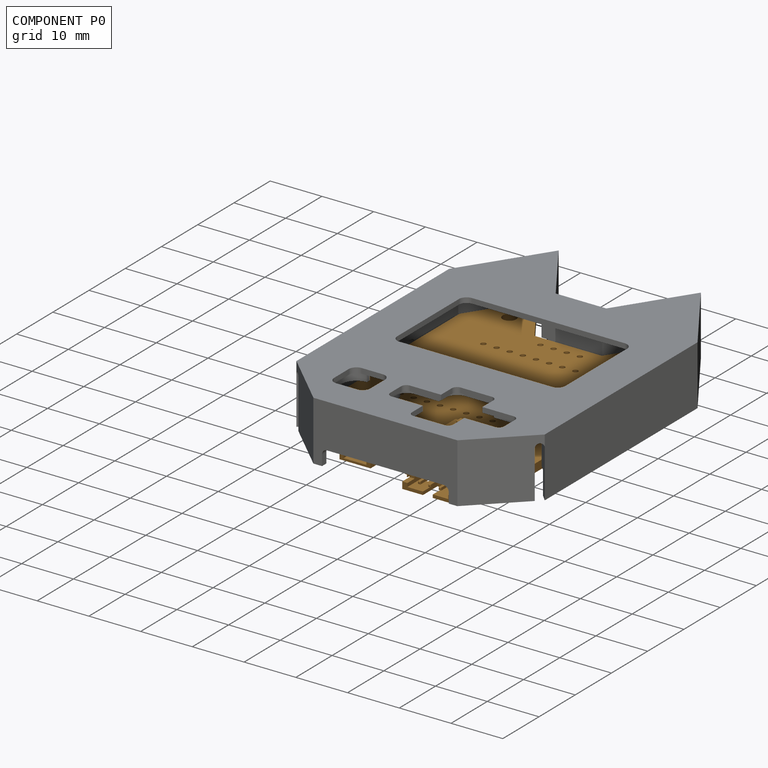
[diagram: component P0 — assembled]
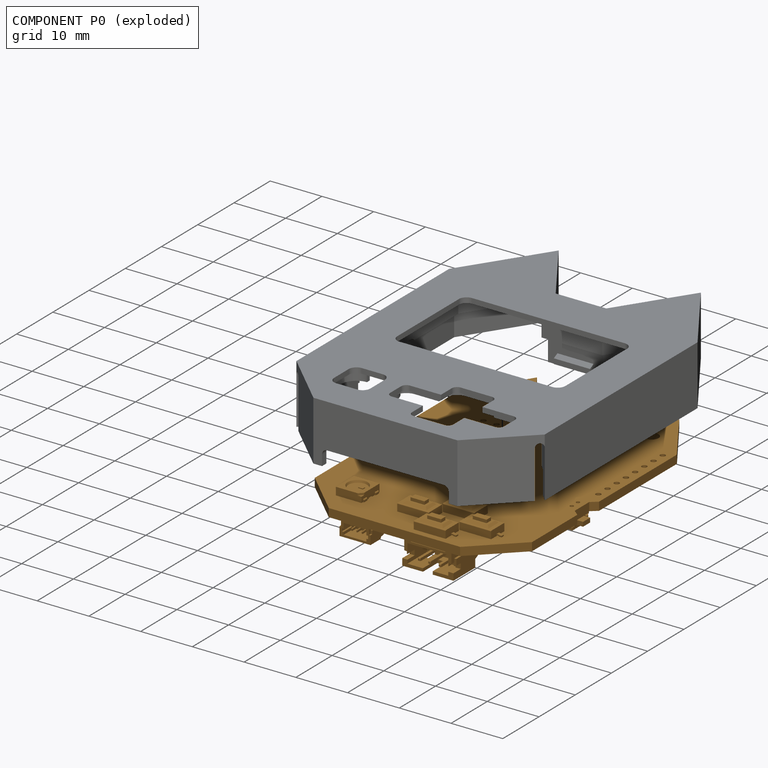
[diagram: component P0 — exploded]
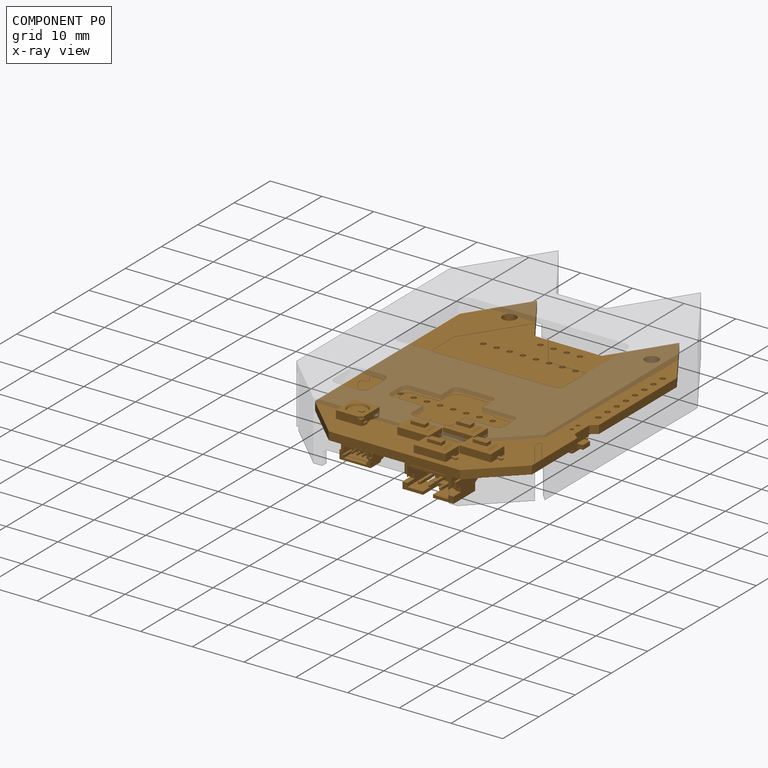
[diagram: component P0 — x-ray view]
COMPONENT P0 — geometry summary ("v3.1-DevKitty"; no construction recipe available for this part):
  bounding box: 59.0 x 42.0 x 8.9 mm
  tessellated surface: 23,208 triangles
  volume: 3682 mm^3 (17% of its bounding box)
Held by: resting contact with P1 (derived edge).
PROVENANCE & LICENSES
Assembly and component geometry: a FreeCAD (.FCStd) document from a public repository crawl; components, placements and joints were extracted with FreeCAD and each solid tessellated.
Construction recipes: the document's own serialized feature recipes (and, for linked parts, the recipes of companion documents from the same project).
License: as declared in the source repository (recorded in the dataset sidecar).
Joints: native FreeCAD joints and A2plus constraints are mapped to standard mate types; edges marked 'derived from contact' connect touching components and are measured from the geometry, not modeled.
Verification: 1 of this assembly's 2 components carries a construction recipe (1 from this document itself); the rest are geometry-only. Every component's tessellation passed the extraction mesh gates (mesh-volume checksum against the B-rep where available, bounding-box inflation <= 2%).
Renders: orthographic iso camera (az 35 / el 25); the floor grid conveys scale (grid pitch printed in each image; no ruler). In the exploded view each component is displaced by its stored offset vector: the offsets alone carry the explosion direction (mate normal/axis signs are not orientation cues and do not encode it), and separation distances are assigned per mate-chain, not proportionally to assembly-order depth.
